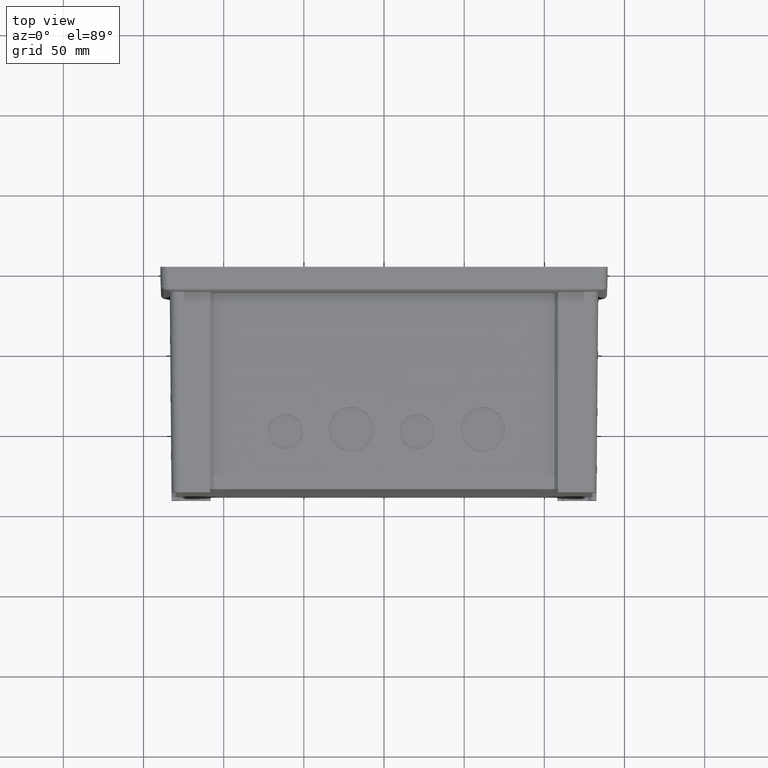
[diagram: clean part render]
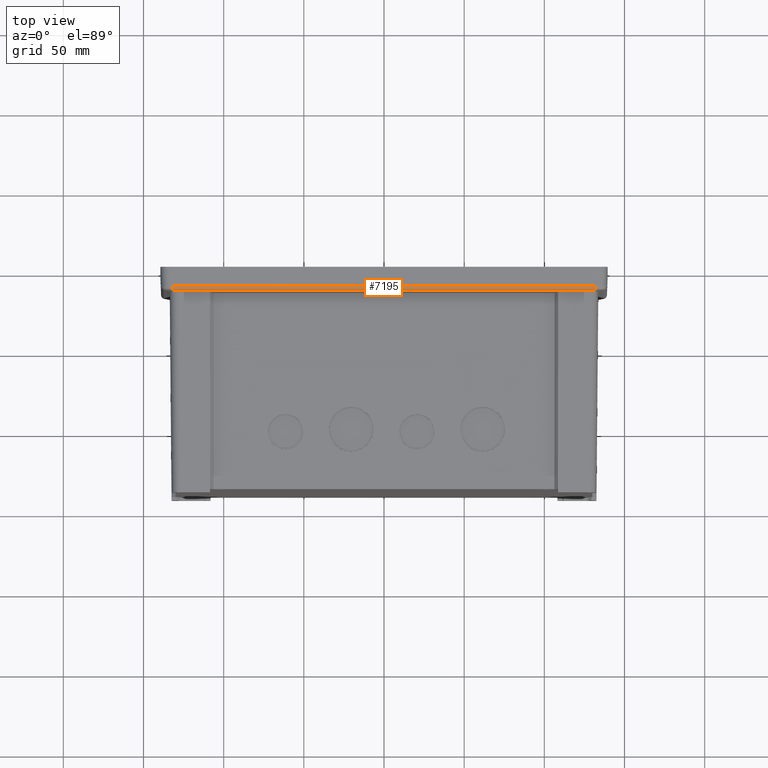
[diagram: same view with one face highlighted and labeled with its STEP entity id]
A machine part, top view. The second image highlights one B-rep face of the part: STEP entity #7195.
In plain terms, the highlighted cylindrical surface (edge-blend (fillet) strip) has radius 2.5 mm, axis along (-1, 0, 0).
Its self-contained STEP definition (entity closure, byte-faithful):
#943=CARTESIAN_POINT('',(-1.315543911930E2,-1.196072703700E1,1.633442717730E2));
#944=DIRECTION('',(-1.E0,0.E0,0.E0));
#945=DIRECTION('',(0.E0,-9.781476006556E-1,2.079116911855E-1));
#946=AXIS2_PLACEMENT_3D('',#943,#944,#945);
#948=DIRECTION('',(1.E0,-6.951460441582E-13,-3.270493926235E-12));
#949=VECTOR('',#948,2.631087823806E2);
#950=CARTESIAN_POINT('',(-1.315543911906E2,-1.440609603873E1,1.638640510010E2));
#951=LINE('',#950,#949);
#952=DIRECTION('',(-1.E0,0.E0,0.E0));
#953=VECTOR('',#952,2.631087824697E2);
#954=CARTESIAN_POINT('',(1.315543912338E2,-1.204797577904E1,1.658427488402E2));
#955=LINE('',#954,#953);
#965=CARTESIAN_POINT('',(1.315543911930E2,-1.196072703700E1,1.633442717730E2));
#966=DIRECTION('',(1.E0,0.E0,0.E0));
#967=DIRECTION('',(0.E0,-3.489949684212E-2,9.993908270142E-1));
#968=AXIS2_PLACEMENT_3D('',#965,#966,#967);
#1076=CARTESIAN_POINT('',(1.315543912338E2,-1.204797577904E1,1.658427488402E2));
#5780=VERTEX_POINT('',#1076);
#5781=CARTESIAN_POINT('',(-1.315543912358E2,-1.204797577904E1,
1.658427488402E2));
#5782=VERTEX_POINT('',#5781);
#5844=CARTESIAN_POINT('',(-1.315543911906E2,-1.440609603873E1,
1.638640510010E2));
#5845=VERTEX_POINT('',#5844);
#5846=CARTESIAN_POINT('',(1.315543911900E2,-1.440609603892E1,1.638640510001E2));
#5847=VERTEX_POINT('',#5846);
#7181=CARTESIAN_POINT('',(1.315543911930E2,-1.196072703700E1,1.633442717730E2));
#7182=DIRECTION('',(-1.E0,0.E0,0.E0));
#7183=DIRECTION('',(0.E0,0.E0,1.E0));
#7184=AXIS2_PLACEMENT_3D('',#7181,#7182,#7183);
#7185=CYLINDRICAL_SURFACE('',#7184,2.5E0);
#7187=ORIENTED_EDGE('',*,*,#7186,.T.);
#7189=ORIENTED_EDGE('',*,*,#7188,.F.);
#7190=ORIENTED_EDGE('',*,*,#7171,.T.);
#7192=ORIENTED_EDGE('',*,*,#7191,.F.);
#7193=EDGE_LOOP('',(#7187,#7189,#7190,#7192));
#7194=FACE_OUTER_BOUND('',#7193,.F.);
#7195=ADVANCED_FACE('',(#7194),#7185,.T.);
#947=CIRCLE('',#946,2.5E0);
#969=CIRCLE('',#968,2.5E0);
#7171=EDGE_CURVE('',#5845,#5782,#947,.T.);
#7186=EDGE_CURVE('',#5780,#5847,#969,.T.);
#7188=EDGE_CURVE('',#5845,#5847,#951,.T.);
#7191=EDGE_CURVE('',#5780,#5782,#955,.T.);